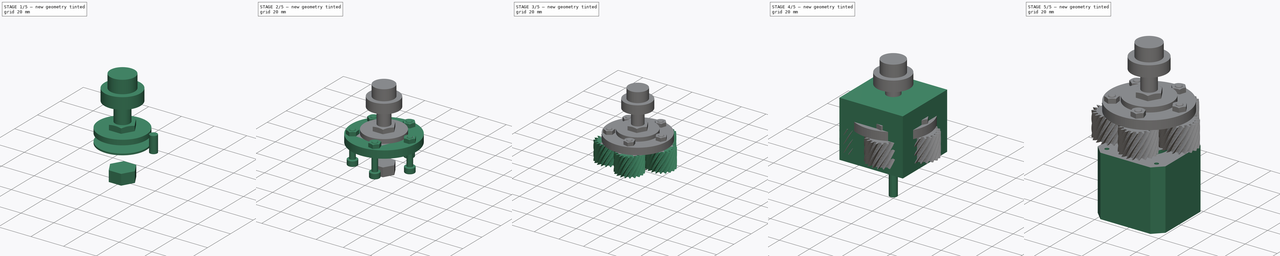
[diagram: build sequence overview — one tinted view per stage of 5, left to right]
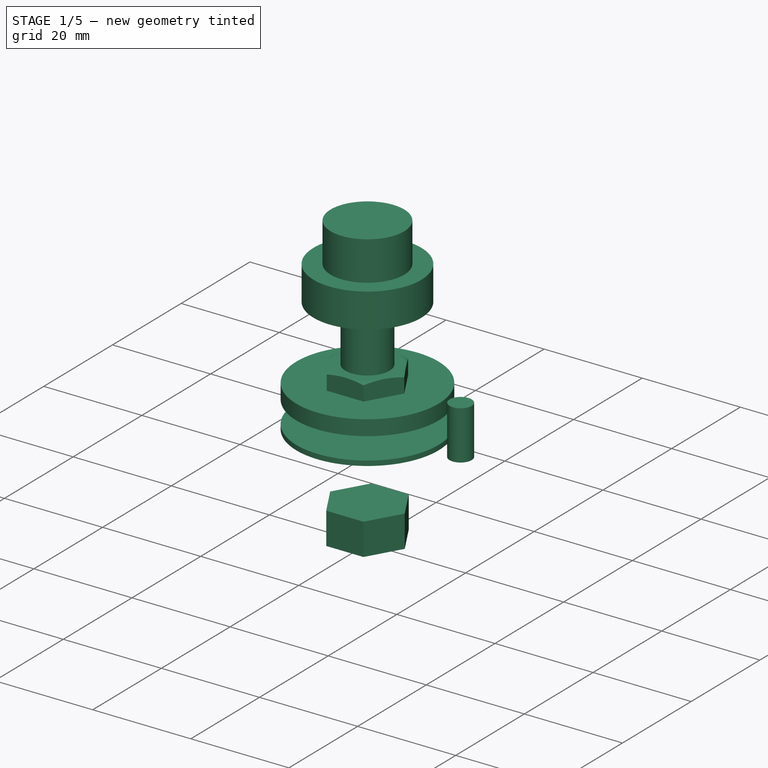
[diagram: stage 1 of 5 — iso view after this stage's code; geometry added in this stage tinted green]
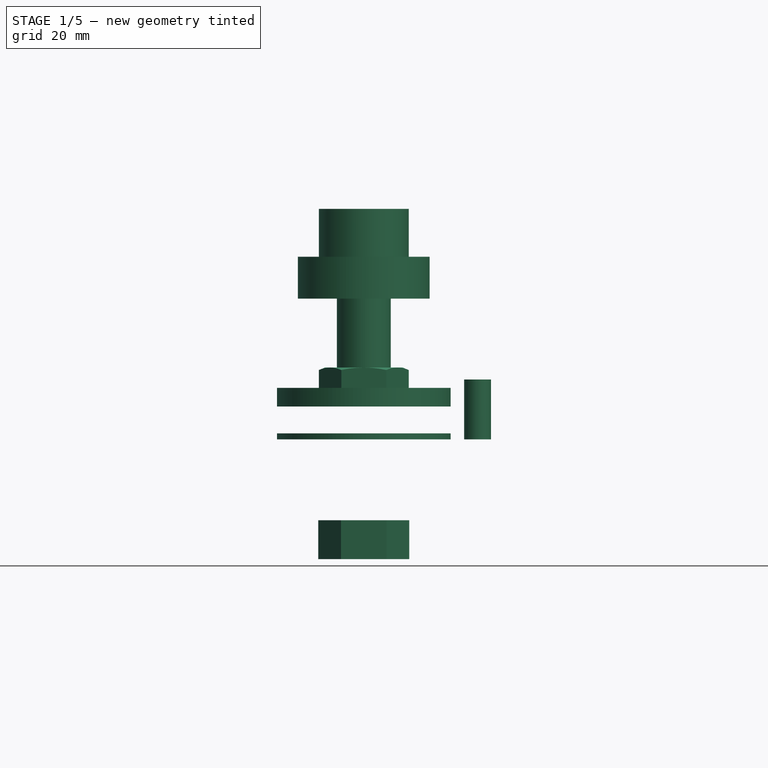
[diagram: stage 1 of 5 — front view after this stage's code; geometry added in this stage tinted green]
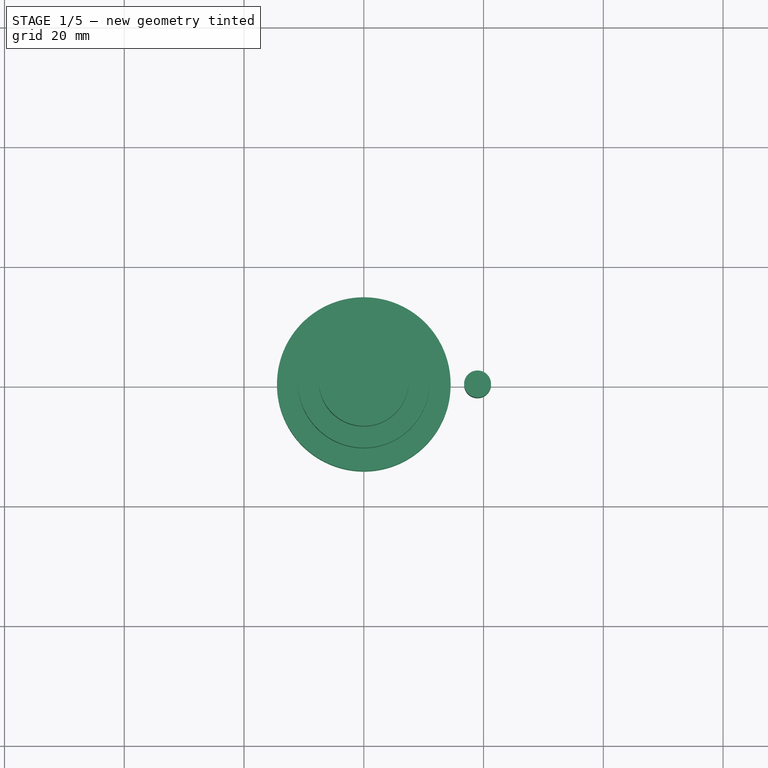
[diagram: stage 1 of 5 — top view after this stage's code; geometry added in this stage tinted green]
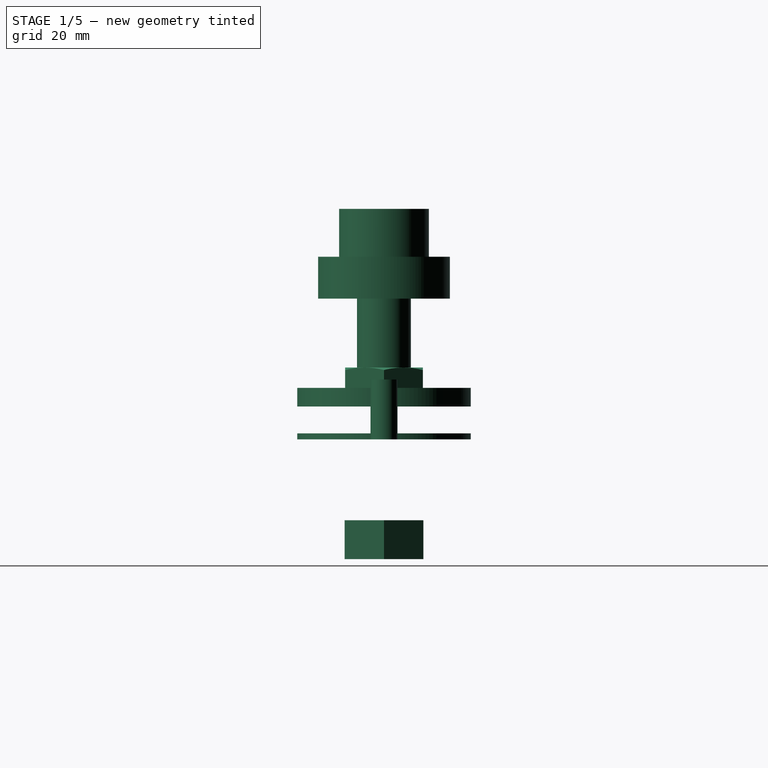
[diagram: stage 1 of 5 — right view after this stage's code; geometry added in this stage tinted green]
FCSTD DOCUMENT  (FreeCAD 1.0R1.0rc2)
Label: ArmGear
License: All rights reserved
LicenseURL: http://en.wikipedia.org/wiki/All_rights_reserved
objects: Part::Cylinder×16, Part::FeaturePython×10, Part::Compound×7, Part::Cut×7, Part::Box×6, Part::MultiFuse×5, Spreadsheet::Sheet×2, Sketcher::SketchObject×2, PartDesign::Pad×2, PartDesign::Body×2
note: 60 computed .brp shape members not serialized (recipe doc carries the construction recipe); baked Part::Feature solids carry a one-line shape summary decoded from their .brp

FEATURE [Sketcher::SketchObject] Sketch
  ArcFitTolerance = 1e-06
  AttachmentSupport = -> [XY_Plane]
  FullyConstrained = true
  MakeInternals = false
  MapMode = 5
  sketch-geometry (7):
    g0: LineSegment StartX=4 StartY=0 StartZ=0 EndX=2 EndY=3.4641 EndZ=0
    g1: LineSegment StartX=2 StartY=3.4641 StartZ=0 EndX=-2 EndY=3.4641 EndZ=0
    g2: LineSegment StartX=-2 StartY=3.4641 StartZ=0 EndX=-4 EndY=-6.867e-12 EndZ=0
    g3: LineSegment StartX=-4 StartY=-6.867e-12 StartZ=0 EndX=-2 EndY=-3.4641 EndZ=0
    g4: LineSegment StartX=-2 StartY=-3.4641 StartZ=0 EndX=2 EndY=-3.4641 EndZ=0
    g5: LineSegment StartX=2 StartY=-3.4641 StartZ=0 EndX=4 EndY=0 EndZ=0
    g6: Circle [constr] CenterX=0 CenterY=0 CenterZ=0 NormalX=0 NormalY=0 NormalZ=1 AngleXU=0 Radius=4
  constraints (16):
    c: Coincident(g0,g1)
    c: Coincident(g1,g2)
    c: Coincident(g2,g3)
    c: Coincident(g3,g4)
    c: Coincident(g4,g5)
    c: Coincident(g5,g0)
    c: Equal(g0, g1-g5) x5
    c: PointOnObject(g0,g6)
    c: PointOnObject(g1,g6)
    c: PointOnObject(g2,g6)
    c: PointOnObject(g3,g6)
    c: PointOnObject(g4,g6)
    c: PointOnObject(g5,g6)
    c: Radius(g6) = 4
    c: Coincident(g6,g-1)
    c: PointOnObject(g5,g-1)
FEATURE [PartDesign::Pad] Pad
  Direction = (0,0,1)
  Length = 3.5
  Length2 = 10
  Profile = -> Sketch
  ReferenceAxis = -> Sketch [N_Axis]
  Suppressed = false
  Type = 0
FEATURE [PartDesign::Body] Body  label="PressfitM4"
  AllowCompound = false
  Group = -> [Sketch,Pad]
  Origin = -> Origin
  Placement = pos=(19,0,22) rot=(0,0,1;0rad)
  Tip = -> Pad
  expr: .Placement.Base.x = <<GearConfiguration>>.planet_offset
  expr: .Placement.Base.z = 20 + <<GearConfiguration>>.planet_carrier_thickness
FEATURE [Part::Cylinder] Cylinder011
  Angle = 360
  AttacherType = Attacher::AttachEngine3D
  FirstAngle = 0
  Height = 10
  Placement = pos=(19,0,20) rot=(0,0,1;0rad)
  Radius = 2.25
  SecondAngle = 0
  expr: .Placement.Base.x = <<GearConfiguration>>.planet_offset
FEATURE [Part::Cylinder] Cylinder012
  Angle = 360
  AttacherType = Attacher::AttachEngine3D
  FirstAngle = 0
  Height = 1
  Placement = pos=(0,0,20) rot=(0,0,1;0rad)
  Radius = 14.5
  SecondAngle = 0
  expr: Height = <<GearConfiguration>>.planet_carrier_thickness / 2
  expr: Radius = <<GearConfiguration>>.gear_module * <<GearConfiguration>>.zs / 2 + 5
FEATURE [Part::Cylinder] Cylinder013
  Angle = 360
  AttacherType = Attacher::AttachEngine3D
  FirstAngle = 0
  Height = 3.1
  Placement = pos=(0,0,25.5) rot=(0,0,1;0rad)
  Radius = 14.5
  SecondAngle = 0
  expr: .Placement.Base.z = 20 + <<GearConfiguration>>.planet_carrier_thickness + 3.5
  expr: Radius = <<GearConfiguration>>.gear_module * <<GearConfiguration>>.zs / 2 + 5
FEATURE [Part::FeaturePython] Nut002  label="M8-Nut"  # WARN: FeaturePython — macro-defined, semantics opaque (R4)
  Diameter = 13
  Invert = false
  LeftHanded = false
  MatchOuter = false
  Placement = pos=(0,0,25.5) rot=(0,0,1;0rad)
  Thread = false
  Type = 19
  expr: .Placement.Base.z = 20 + <<GearConfiguration>>.planet_carrier_thickness + 3.5
FEATURE [Part::FeaturePython] Screw001  label="M8x25-Screw"  # WARN: FeaturePython — macro-defined, semantics opaque (R4)
  Diameter = 8
  Invert = false
  LeftHanded = false
  Length = 5
  LengthCustom = 25
  MatchOuter = false
  Placement = pos=(0,0,50.5) rot=(1,0,0;0rad)
  Thread = false
  Type = 74
  expr: .Placement.Base.z = 45 + <<GearConfiguration>>.planet_carrier_thickness + 3.5
FEATURE [Part::Cylinder] Cylinder014
  Angle = 360
  AttacherType = Attacher::AttachEngine3D
  FirstAngle = 0
  Height = 33
  Placement = pos=(0,0,25.5) rot=(0,0,1;0rad)
  Radius = 4.5
  SecondAngle = 0
  expr: .Placement.Base.z = 20 + 3.5 + <<GearConfiguration>>.planet_carrier_thickness
FEATURE [Part::Cylinder] Cylinder015
  Angle = 360
  AttacherType = Attacher::AttachEngine3D
  FirstAngle = 0
  Height = 8
  Placement = pos=(0,0,50.5) rot=(0,0,1;0rad)
  Radius = 7.5
  SecondAngle = 0
  expr: .Placement.Base.z = 20 + 3.5 + <<GearConfiguration>>.planet_carrier_thickness + 25
FEATURE [Part::MultiFuse] Fusion004  label="ScrewSpaceM8"
  Shapes = -> [Cylinder015,Cylinder014]
FEATURE [Part::Cylinder] Cylinder016  label="BallBearingSpace"
  Angle = 360
  AttacherType = Attacher::AttachEngine3D
  FirstAngle = 0
  Height = 7
  Placement = pos=(0,0,43.5) rot=(0,0,1;0rad)
  Radius = 11
  SecondAngle = 0
  expr: .Placement.Base.z = 20 + 3.5 + <<GearConfiguration>>.planet_carrier_thickness + 25 - 7
FEATURE [Sketcher::SketchObject] Sketch001
  ArcFitTolerance = 1e-06
  AttachmentSupport = -> [XY_Plane001]
  FullyConstrained = true
  MakeInternals = false
  MapMode = 5
  sketch-geometry (7):
    g0: LineSegment StartX=7.6 StartY=0 StartZ=0 EndX=3.8 EndY=6.58179 EndZ=0
    g1: LineSegment StartX=3.8 StartY=6.58179 StartZ=0 EndX=-3.8 EndY=6.58179 EndZ=0
    g2: LineSegment StartX=-3.8 StartY=6.58179 StartZ=0 EndX=-7.6 EndY=2.60671e-11 EndZ=0
    g3: LineSegment StartX=-7.6 StartY=2.60671e-11 StartZ=0 EndX=-3.8 EndY=-6.58179 EndZ=0
    g4: LineSegment StartX=-3.8 StartY=-6.58179 StartZ=0 EndX=3.8 EndY=-6.58179 EndZ=0
    g5: LineSegment StartX=3.8 StartY=-6.58179 StartZ=0 EndX=7.6 EndY=0 EndZ=0
    g6: Circle [constr] CenterX=0 CenterY=0 CenterZ=0 NormalX=0 NormalY=0 NormalZ=1 AngleXU=0 Radius=7.6
  constraints (16):
    c: Coincident(g0,g1)
    c: Coincident(g1,g2)
    c: Coincident(g2,g3)
    c: Coincident(g3,g4)
    c: Coincident(g4,g5)
    c: Coincident(g5,g0)
    c: Equal(g0, g1-g5) x5
    c: PointOnObject(g0,g6)
    c: PointOnObject(g1,g6)
    c: PointOnObject(g2,g6)
    c: PointOnObject(g3,g6)
    c: PointOnObject(g4,g6)
    c: PointOnObject(g5,g6)
    c: Radius(g6) = 7.6
    c: Coincident(g6,g-1)
    c: PointOnObject(g5,g-1)
FEATURE [PartDesign::Pad] Pad001
  Direction = (0,0,1)
  Length = 6.5
  Length2 = 10
  Profile = -> Sketch001
  ReferenceAxis = -> Sketch001 [N_Axis]
  Suppressed = false
  Type = 0
FEATURE [PartDesign::Body] Body001  label="PressfitM8"
  AllowCompound = false
  Group = -> [Sketch001,Pad001]
  Origin = -> Origin001
  Placement = pos=(0,0,1) rot=(0,0,1;0rad)
  Tip = -> Pad001
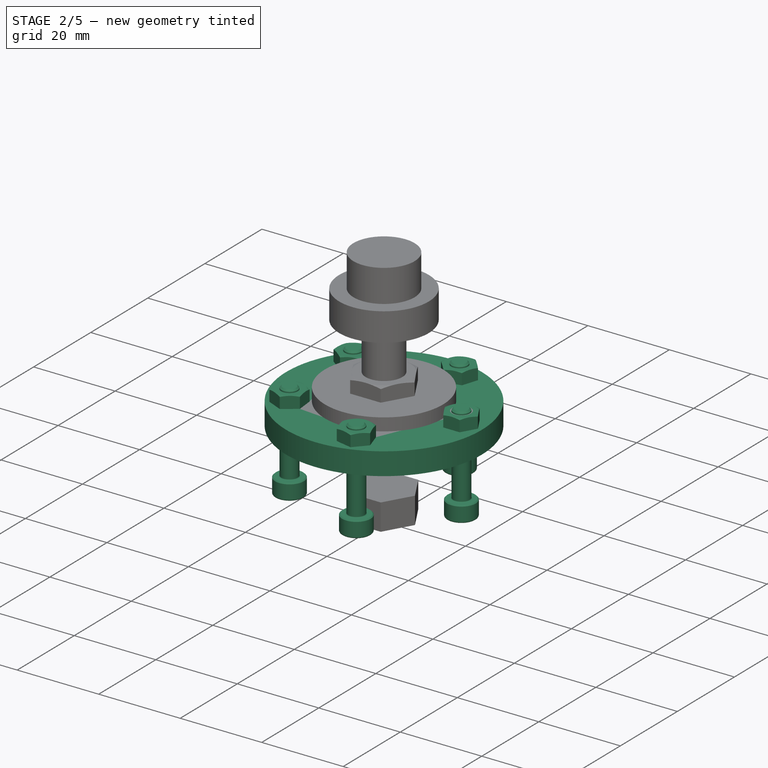
[diagram: stage 2 of 5 — iso view after this stage's code; geometry added in this stage tinted green]
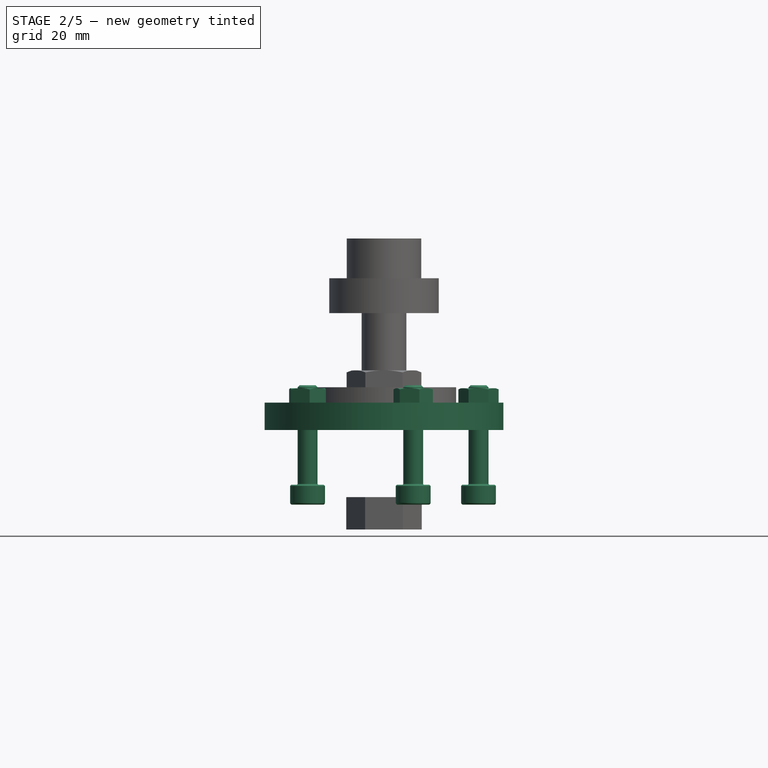
[diagram: stage 2 of 5 — front view after this stage's code; geometry added in this stage tinted green]
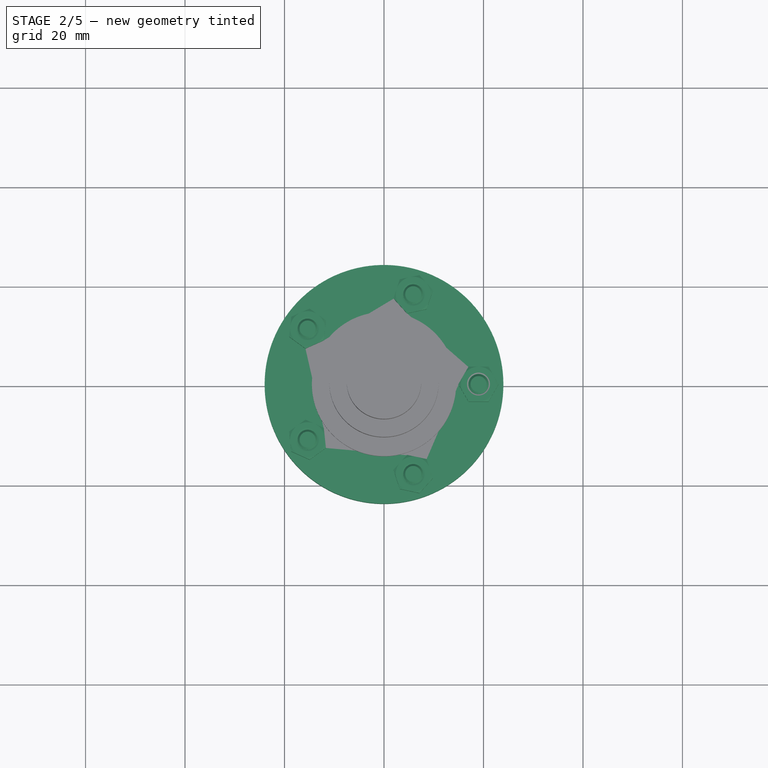
[diagram: stage 2 of 5 — top view after this stage's code; geometry added in this stage tinted green]
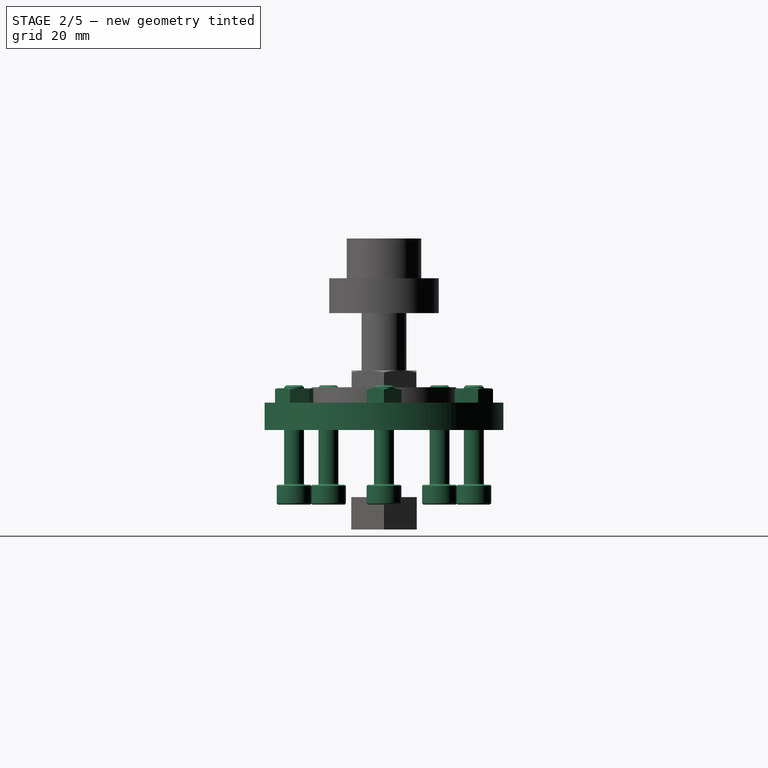
[diagram: stage 2 of 5 — right view after this stage's code; geometry added in this stage tinted green]
FEATURE [Part::FeaturePython] Screw  label="M4x20-Screw"  # WARN: FeaturePython — macro-defined, semantics opaque (R4)
  Diameter = 5
  Invert = false
  LeftHanded = false
  Length = 6
  LengthCustom = 20
  MatchOuter = false
  Placement = pos=(19,0,9) rot=(1,0,0;3.14159rad)
  Thread = false
  Type = 74
  expr: .Placement.Base.x = <<GearConfiguration>>.planet_offset
FEATURE [Part::FeaturePython] Nut  label="M4-Nut001"  # WARN: FeaturePython — macro-defined, semantics opaque (R4)
  Diameter = 9
  Invert = false
  LeftHanded = false
  MatchOuter = false
  Placement = pos=(19,0,22) rot=(0,0,1;0rad)
  Thread = false
  Type = 19
  expr: .Placement.Base.x = <<GearConfiguration>>.planet_offset
  expr: .Placement.Base.z = 20 + <<GearConfiguration>>.planet_carrier_thickness
FEATURE [Part::FeaturePython] Nut001  label="M4-Nut"  # WARN: FeaturePython — macro-defined, semantics opaque (R4)
  Diameter = 9
  Invert = false
  LeftHanded = false
  MatchOuter = false
  Placement = pos=(19,0,25.2) rot=(0,0,1;0rad)
  Thread = false
  Type = 19
  expr: .Placement.Base.x = <<GearConfiguration>>.planet_offset
  expr: .Placement.Base.z = 20 + <<GearConfiguration>>.planet_carrier_thickness + 3.2
FEATURE [Part::Compound] Compound006
  Links = -> [Nut001,Screw,Nut]
FEATURE [Part::FeaturePython] Array001  label="MODELPlanetGearScrews"  # Draft array (typed FeaturePython)
  AlwaysSyncPlacement = false
  Angle = 360
  ArrayType = 1
  Axis = (0,0,1)
  Base = -> Compound006
  Center = (0,0,0)
  Count = 5
  ExpandArray = false
  Fuse = false
  IntervalAxis = (0,0,0)
  IntervalX = (50,0,0)
  IntervalY = (0,50,0)
  IntervalZ = (0,0,50)
  NumberCircles = 3
  NumberPolar = 5
  NumberX = 2
  NumberY = 2
  NumberZ = 1
  PlacementList = 5 placements: [(0,0,0),(0,0,0),(0,0,0),(0,0,0),(0,0,0)]
  RadialDistance = 50
  ScaleList = (5) [(1,1,1),(1,1,1),(1,1,1),(1,1,1),(1,1,1)]
  Symmetry = 1
  TangentialDistance = 25
  expr: NumberPolar = <<GearConfiguration>>.num_planets
FEATURE [Part::Cylinder] Cylinder010
  Angle = 360
  AttacherType = Attacher::AttachEngine3D
  FirstAngle = 0
  Height = 5.5
  Placement = pos=(0,0,20) rot=(0,0,1;0rad)
  Radius = 24
  SecondAngle = 0
  expr: Height = <<GearConfiguration>>.planet_carrier_thickness + 3.5
  expr: Radius = <<GearConfiguration>>.planet_offset + 5
FEATURE [Part::MultiFuse] Fusion003
  Shapes = -> [Cylinder011,Body]
FEATURE [Part::FeaturePython] Array002  # Draft array (typed FeaturePython)
  AlwaysSyncPlacement = false
  Angle = 360
  ArrayType = 1
  Axis = (0,0,1)
  Base = -> Fusion003
  Center = (0,0,0)
  Count = 5
  ExpandArray = false
  Fuse = false
  IntervalAxis = (0,0,0)
  IntervalX = (50,0,0)
  IntervalY = (0,50,0)
  IntervalZ = (0,0,50)
  NumberCircles = 3
  NumberPolar = 5
  NumberX = 2
  NumberY = 2
  NumberZ = 1
  PlacementList = 5 placements: [(0,0,0),(0,0,0),(0,0,0),(0,0,0),(0,0,0)]
  RadialDistance = 50
  ScaleList = (5) [(1,1,1),(1,1,1),(1,1,1),(1,1,1),(1,1,1)]
  Symmetry = 1
  TangentialDistance = 25
  expr: NumberPolar = <<GearConfiguration>>.num_planets
FEATURE [Part::Cut] Cut005
  Base = -> Cylinder010
  Tool = -> Array002
FEATURE [Part::Cut] Cut006
  Base = -> Cut005
  Tool = -> Cylinder012
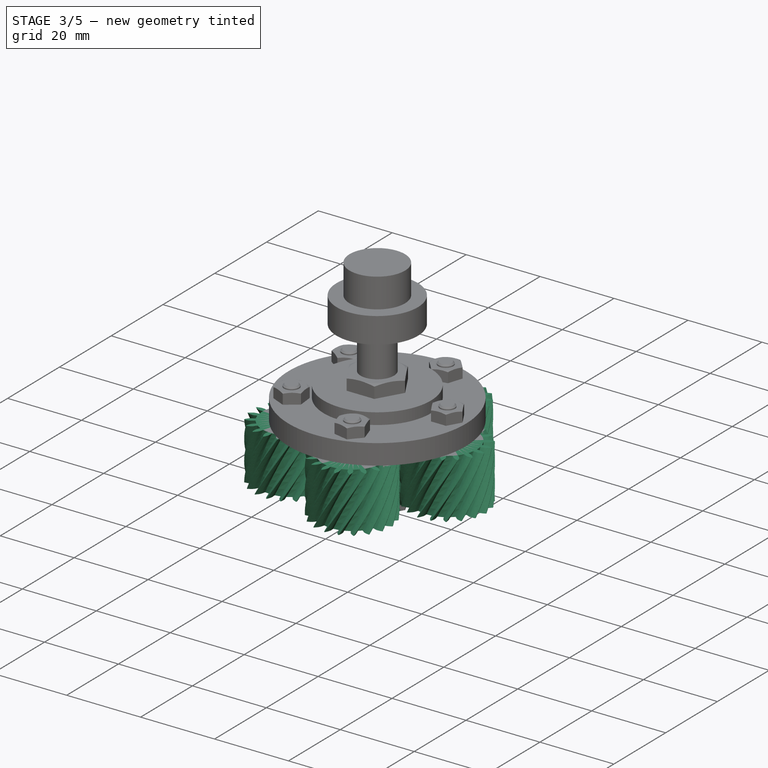
[diagram: stage 3 of 5 — iso view after this stage's code; geometry added in this stage tinted green]
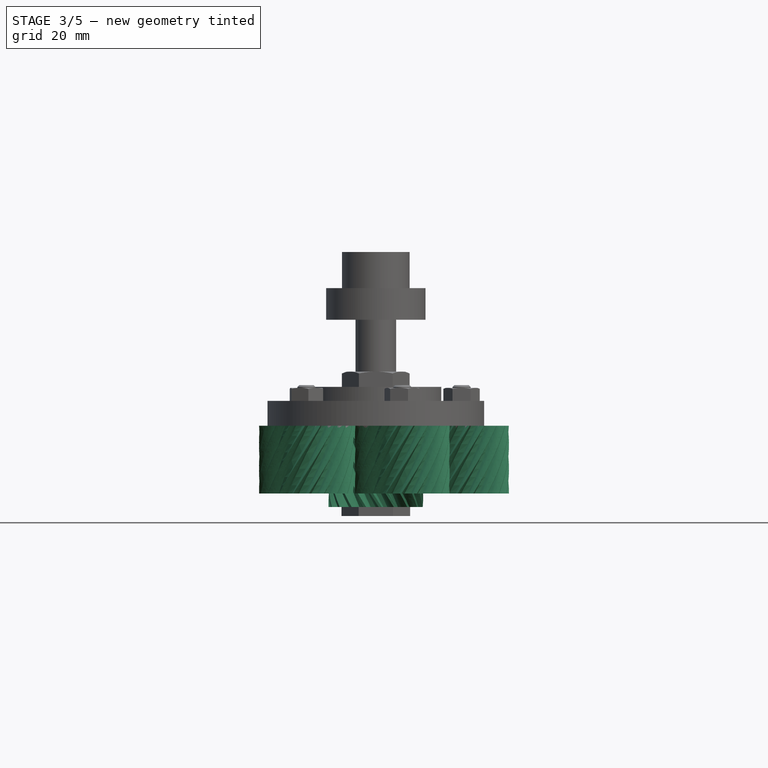
[diagram: stage 3 of 5 — front view after this stage's code; geometry added in this stage tinted green]
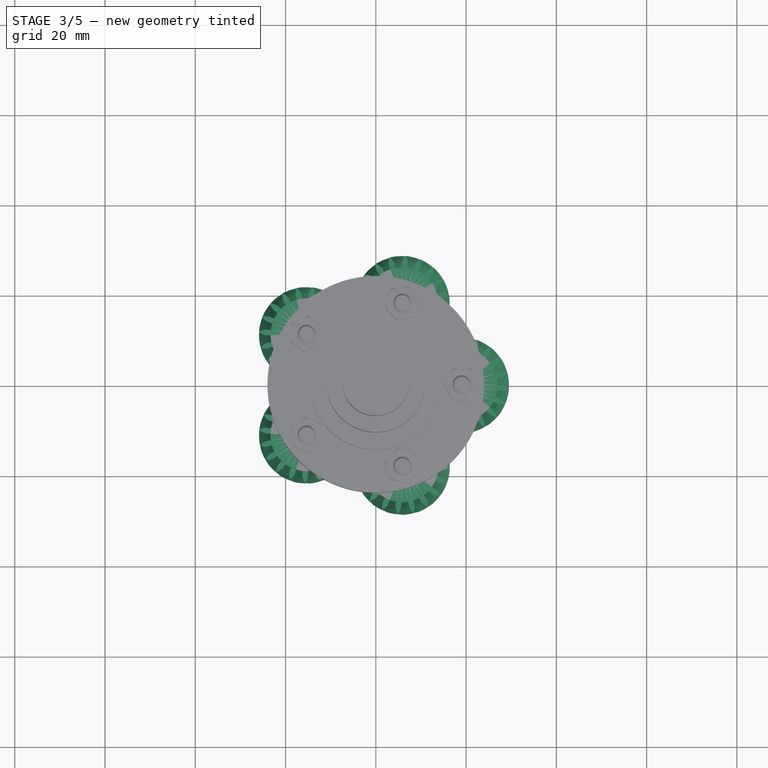
[diagram: stage 3 of 5 — top view after this stage's code; geometry added in this stage tinted green]
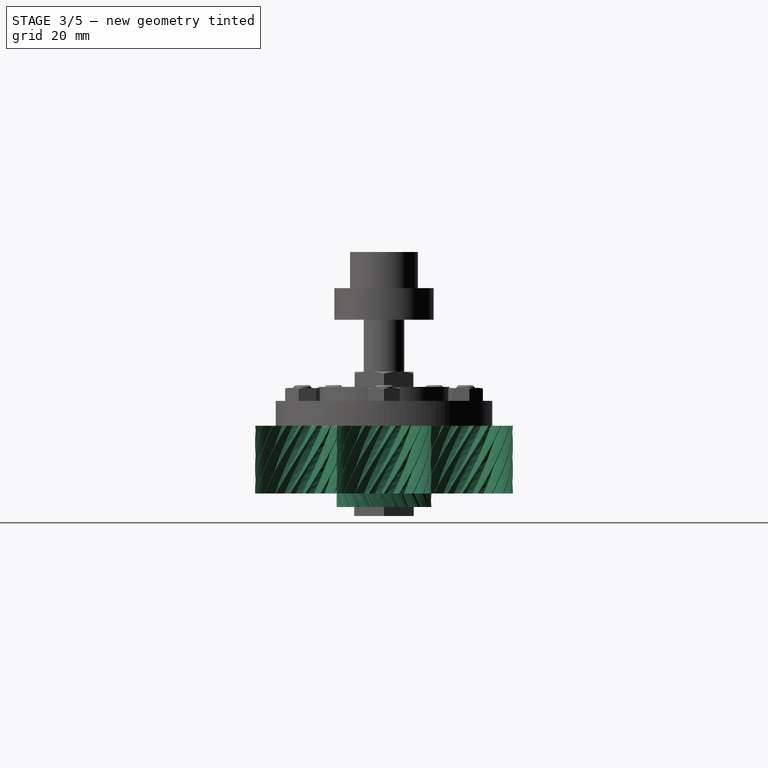
[diagram: stage 3 of 5 — right view after this stage's code; geometry added in this stage tinted green]
FEATURE [Spreadsheet::Sheet] Spreadsheet  label="NEMA17Parameters"
  cells = A1='Motor length; B1(motorlength)=37.5; A2='Mountplate thickness; B2(mountplatet)=5; A3='Mountplate below screw; B3(nema17mountplatebelowscrew)=1
FEATURE [Spreadsheet::Sheet] Spreadsheet001  label="GearConfiguration"
  cells = A1='Configuration properties; D1='Calculated properties; A2='Sun gear teeth; B2(zs)=19; D2='Planet gear teeth; E2(zp)==(zr - zs) / 2; A3='Ring gear teeth; B3(zr)=57; D3='Planetary gear offset; E3(planet_offset)==gear_module * (zp + zs) / 2; A4='Module; B4(gear_module)=1; D4='Ring Gear Diameter; E4(ringgear_diameter)==gear_module * zr; A5='Ring Gear thickness; B5(ringgear_thick)=5; D5='Transmission ratio; E5==1 + zr / zs; A6='Clearance; B6(gear_clearance)=0.5; C6='Default 0.25; D6='Sun gear diameter; E6(sun_gear_diameter)==gear_module * zs; A7='Number of planets; B7(num_planets)=5; A8='Planet 'Carrier Thickness; B8(planet_carrier_thickness)=2
FEATURE [Part::Box] Box005  label="Cube005"
  AttacherType = Attacher::AttachEngine3D
  Height = 20
  Length = 10
  Placement = pos=(-5,2.1,1.8) rot=(0,0,1;0rad)
  Width = 10
FEATURE [Part::Cylinder] Cylinder006
  Angle = 360
  AttacherType = Attacher::AttachEngine3D
  FirstAngle = 0
  Height = 20
  Radius = 2.7
  SecondAngle = 0
FEATURE [Part::Cut] Cut002
  Base = -> Cylinder006
  Tool = -> Box005
FEATURE [Part::FeaturePython] InvoluteGear  # WARN: FeaturePython — macro-defined, semantics opaque (R4)
  AttacherType = Attacher::AttachEngine3D
  angular_backlash = 0
  backlash = 0
  beta = -30
  clearance = 0.5
  da = 21
  df = 16
  double_helix = false
  dw = 19
  head = 0
  head_fillet = 0
  height = 18
  module = 1
  numpoints = 20
  pressure_angle = 20
  properties_from_tool = false
  reversed_backlash = false
  root_fillet = 0
  shift = 0
  simple = false
  teeth = 19
  transverse_pitch = 3.14159
  traverse_module = 1
  undercut = false
  version = 1.2.0
  expr: angular_backlash = backlash / dw * 360 ° / pi
  expr: clearance = <<GearConfiguration>>.gear_clearance
  expr: module = <<GearConfiguration>>.gear_module
  expr: teeth = <<GearConfiguration>>.zs
FEATURE [Part::Cut] Cut003  label="SunGear1"
  Base = -> InvoluteGear
  Placement = pos=(0,0,2) rot=(0,0,1;0.174533rad)
  Tool = -> Cut002
FEATURE [Part::Cylinder] Cylinder008
  Angle = 360
  AttacherType = Attacher::AttachEngine3D
  FirstAngle = 0
  Height = 40
  Radius = 2.25
  SecondAngle = 0
FEATURE [Part::Cylinder] Cylinder009
  Angle = 360
  AttacherType = Attacher::AttachEngine3D
  FirstAngle = 0
  Height = 4
  Placement = pos=(0,0,5) rot=(0,0,1;0rad)
  Radius = 3.75
  SecondAngle = 0
FEATURE [Part::MultiFuse] Fusion002
  Placement = pos=(19,0,0) rot=(0,0,1;0rad)
  Shapes = -> [Cylinder009,Cylinder008]
  expr: .Placement.Base.x = <<GearConfiguration>>.planet_offset
FEATURE [Part::FeaturePython] InvoluteGear001  # WARN: FeaturePython — macro-defined, semantics opaque (R4)
  AttacherType = Attacher::AttachEngine3D
  Placement = pos=(19,0,5) rot=(0,0,1;0rad)
  angular_backlash = 3.01557
  backlash = 0.5
  beta = 30
  clearance = 0.5
  da = 21
  df = 16
  double_helix = false
  dw = 19
  head = 0
  head_fillet = 0
  height = 15
  module = 1
  numpoints = 20
  pressure_angle = 20
  properties_from_tool = false
  reversed_backlash = false
  root_fillet = 0
  shift = 0
  simple = false
  teeth = 19
  transverse_pitch = 3.14159
  traverse_module = 1
  undercut = false
  version = 1.2.0
  expr: .Placement.Base.x = <<GearConfiguration>>.planet_offset
  expr: angular_backlash = backlash / dw * 360 ° / pi
  expr: clearance = <<GearConfiguration>>.gear_clearance
  expr: module = <<GearConfiguration>>.gear_module
  expr: teeth = <<GearConfiguration>>.zp
FEATURE [Part::Cut] Cut004  label="PlanetGear"
  Base = -> InvoluteGear001
  Tool = -> Fusion002
FEATURE [Part::FeaturePython] Array  label="ArrayPlanetGears"  # Draft array (typed FeaturePython)
  AlwaysSyncPlacement = false
  Angle = 360
  ArrayType = 1
  Axis = (0,0,1)
  Base = -> Cut004
  Center = (0,0,0)
  Count = 5
  ExpandArray = false
  Fuse = false
  IntervalAxis = (0,0,0)
  IntervalX = (50,0,0)
  IntervalY = (0,50,0)
  IntervalZ = (0,0,50)
  NumberCircles = 3
  NumberPolar = 5
  NumberX = 2
  NumberY = 2
  NumberZ = 1
  PlacementList = 5 placements: [(0,0,0),(0,0,0),(0,0,0),(0,0,0),(0,0,0)]
  RadialDistance = 50
  ScaleList = (5) [(1,1,1),(1,1,1),(1,1,1),(1,1,1),(1,1,1)]
  Symmetry = 1
  TangentialDistance = 25
  expr: NumberPolar = <<GearConfiguration>>.num_planets
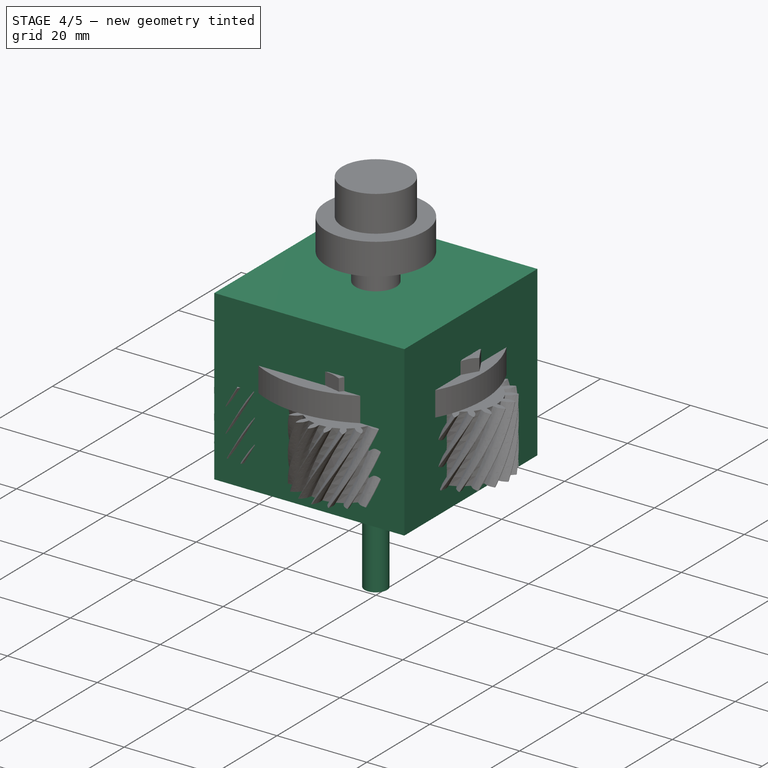
[diagram: stage 4 of 5 — iso view after this stage's code; geometry added in this stage tinted green]
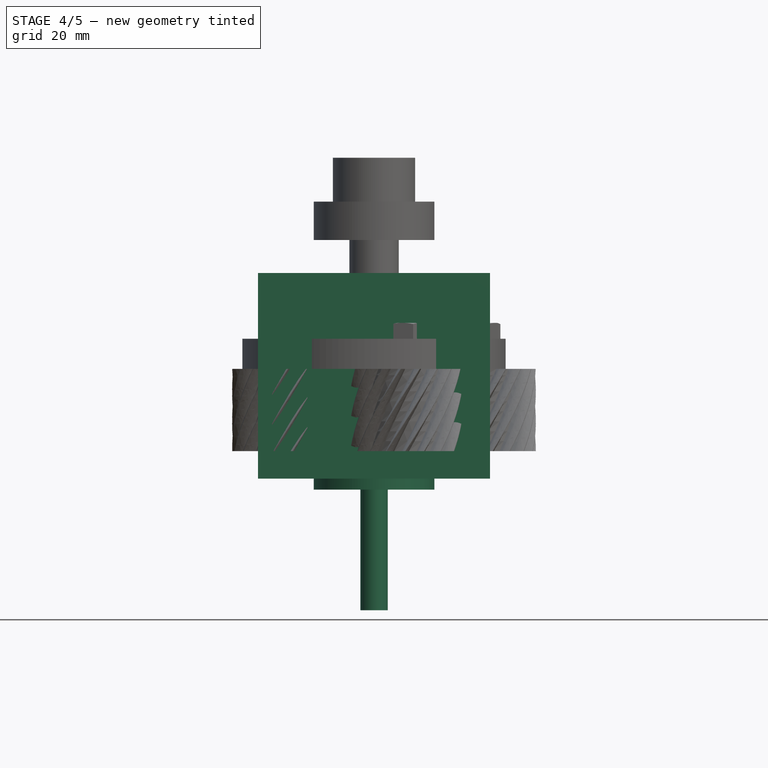
[diagram: stage 4 of 5 — front view after this stage's code; geometry added in this stage tinted green]
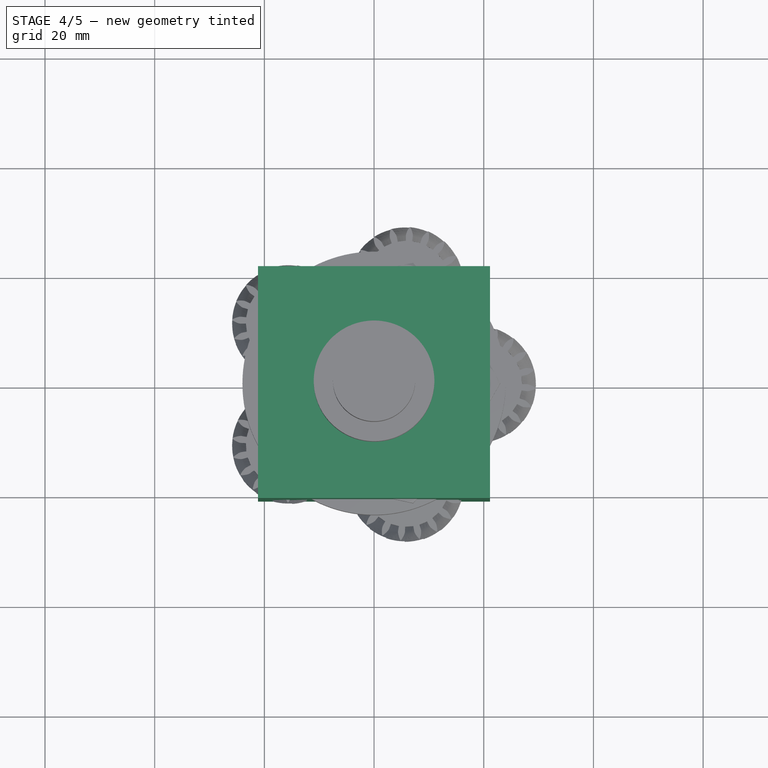
[diagram: stage 4 of 5 — top view after this stage's code; geometry added in this stage tinted green]
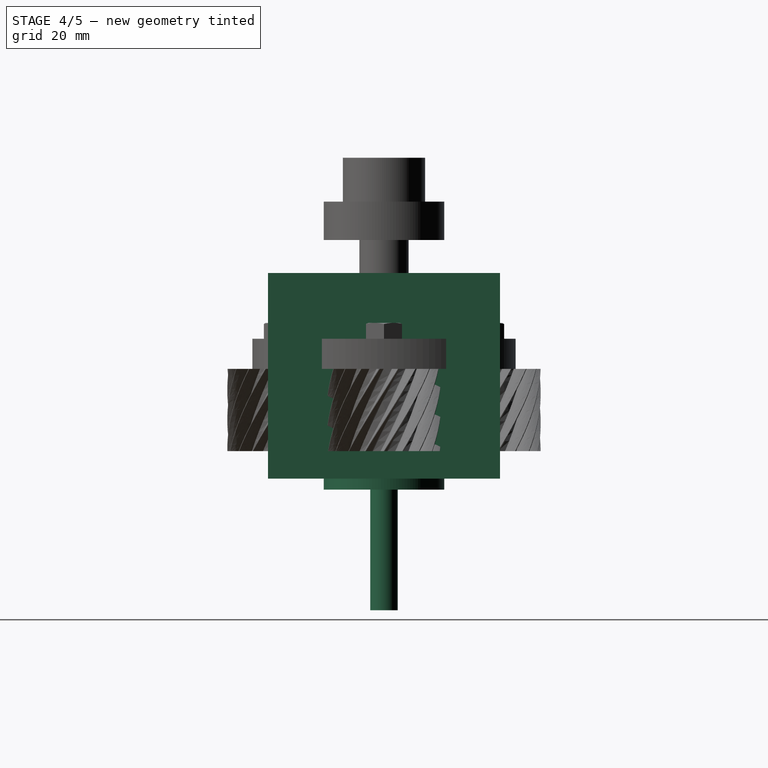
[diagram: stage 4 of 5 — right view after this stage's code; geometry added in this stage tinted green]
FEATURE [Part::Box] Box  label="Cube"
  AttacherType = Attacher::AttachEngine3D
  Height = 37.5
  Length = 42.3
  Placement = pos=(-21.15,-21.15,0) rot=(0,0,1;0rad)
  Width = 42.3
  expr: Height = <<NEMA17Parameters>>.motorlength
FEATURE [Part::Cylinder] Cylinder
  Angle = 360
  AttacherType = Attacher::AttachEngine3D
  FirstAngle = 0
  Height = 2
  Placement = pos=(0,0,-2) rot=(0,0,1;0rad)
  Radius = 11
  SecondAngle = 0
FEATURE [Part::Cylinder] Cylinder001
  Angle = 360
  AttacherType = Attacher::AttachEngine3D
  FirstAngle = 0
  Height = 24
  Placement = pos=(0,0,-24) rot=(0,0,1;0rad)
  Radius = 2.5
  SecondAngle = 0
FEATURE [Part::Cylinder] Cylinder002
  Angle = 360
  AttacherType = Attacher::AttachEngine3D
  FirstAngle = 0
  Height = 37.5
  Placement = pos=(15.5,15.5,0) rot=(0,0,1;0rad)
  Radius = 1.25
  SecondAngle = 0
  expr: Height = <<NEMA17Parameters>>.motorlength
FEATURE [Part::Cylinder] Cylinder003
  Angle = 360
  AttacherType = Attacher::AttachEngine3D
  FirstAngle = 0
  Height = 37.5
  Placement = pos=(-15.5,15.5,0) rot=(0,0,1;0rad)
  Radius = 1.25
  SecondAngle = 0
  expr: Height = <<NEMA17Parameters>>.motorlength
FEATURE [Part::Cylinder] Cylinder004
  Angle = 360
  AttacherType = Attacher::AttachEngine3D
  FirstAngle = 0
  Height = 37.5
  Placement = pos=(15.5,-15.5,0) rot=(0,0,1;0rad)
  Radius = 1.25
  SecondAngle = 0
  expr: Height = <<NEMA17Parameters>>.motorlength
FEATURE [Part::Cylinder] Cylinder005
  Angle = 360
  AttacherType = Attacher::AttachEngine3D
  FirstAngle = 0
  Height = 37.5
  Placement = pos=(-15.5,-15.5,0) rot=(0,0,1;0rad)
  Radius = 1.25
  SecondAngle = 0
  expr: Height = <<NEMA17Parameters>>.motorlength
FEATURE [Part::Compound] Compound
  Links = -> [Cylinder005,Cylinder002,Cylinder003,Cylinder004]
FEATURE [Part::MultiFuse] Fusion
  Shapes = -> [Cylinder,Box]
FEATURE [Part::MultiFuse] Fusion001
  Shapes = -> [Cylinder001,Fusion]
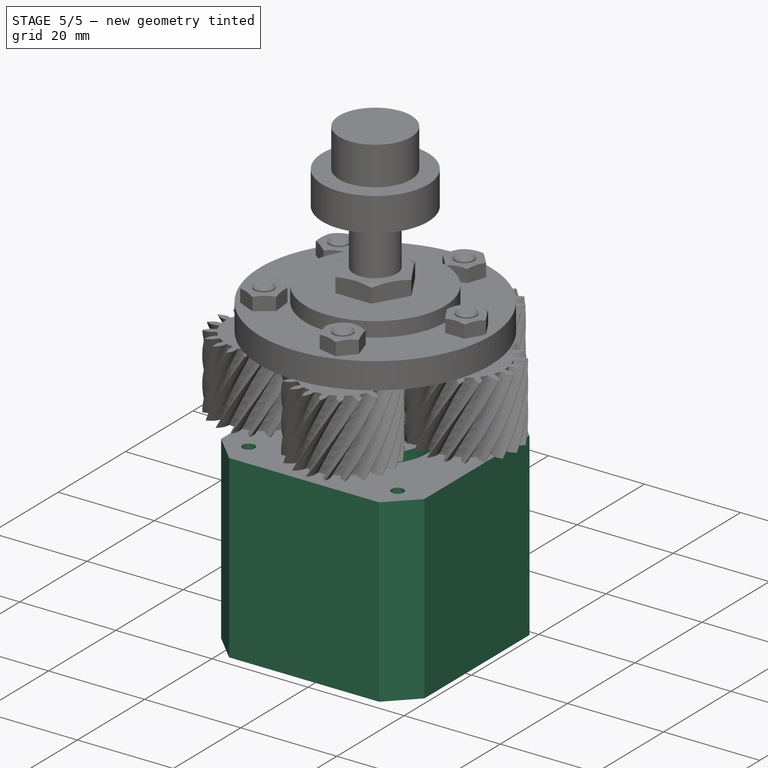
[diagram: stage 5 of 5 — iso view after this stage's code; geometry added in this stage tinted green]
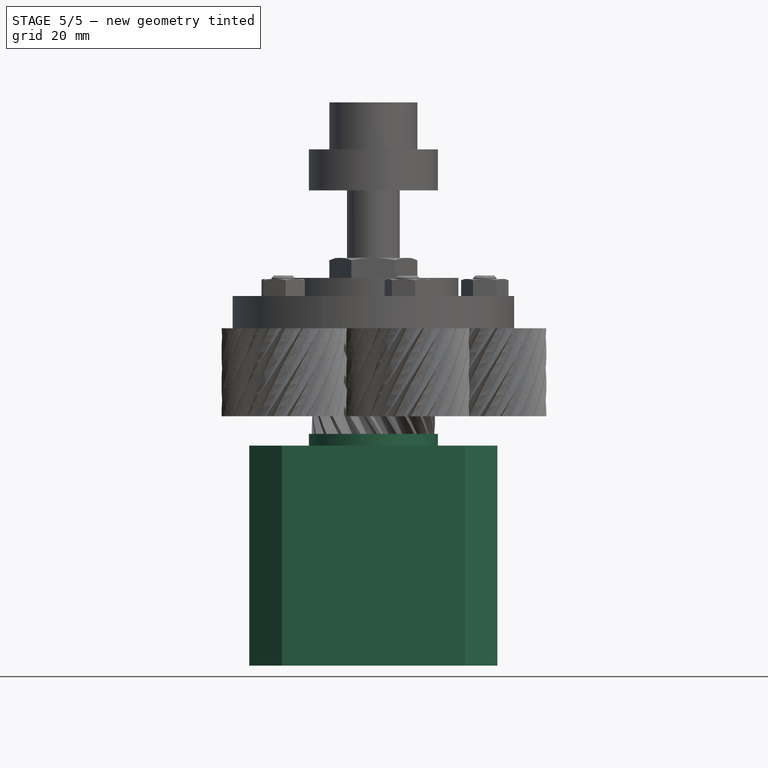
[diagram: stage 5 of 5 — front view after this stage's code; geometry added in this stage tinted green]
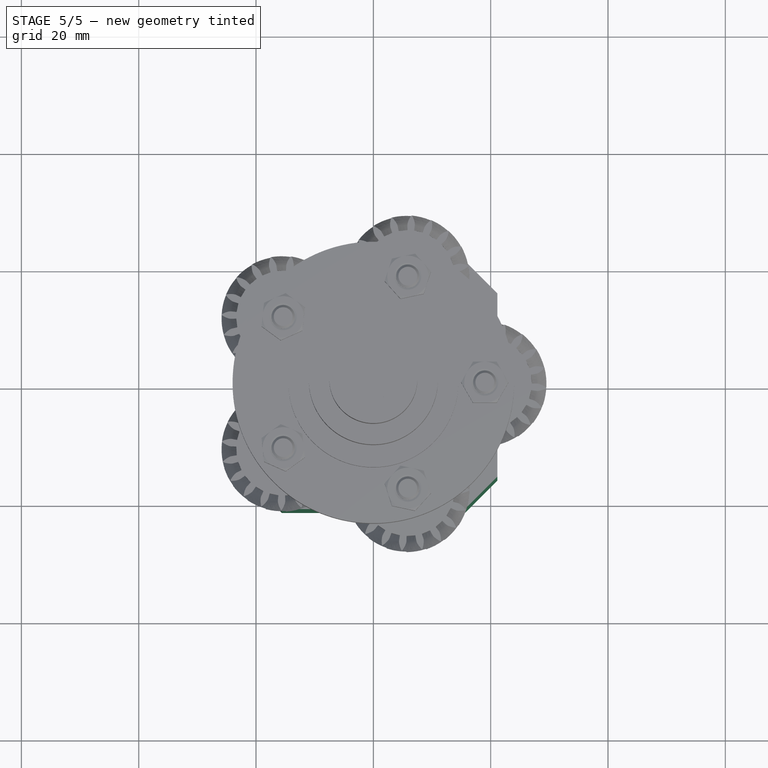
[diagram: stage 5 of 5 — top view after this stage's code; geometry added in this stage tinted green]
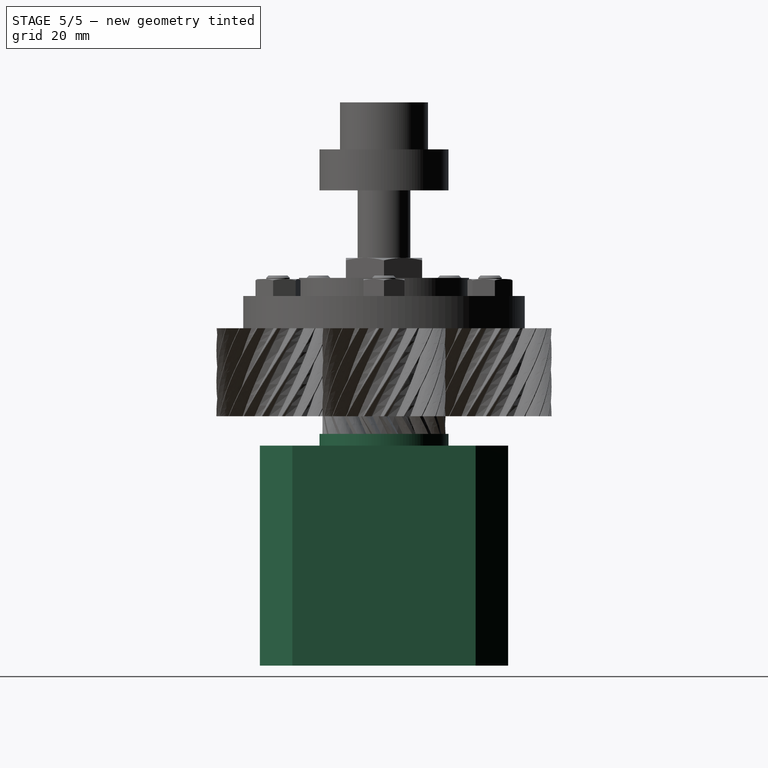
[diagram: stage 5 of 5 — right view after this stage's code; geometry added in this stage tinted green]
FEATURE [Part::Box] Box001  label="Cube001"
  AttacherType = Attacher::AttachEngine3D
  Height = 37.5
  Length = 100
  Placement = pos=(26,-50,0) rot=(0,0,1;0rad)
  Width = 100
  expr: Height = <<NEMA17Parameters>>.motorlength
FEATURE [Part::Box] Box002  label="Cube002"
  AttacherType = Attacher::AttachEngine3D
  Height = 37.5
  Length = 100
  Placement = pos=(26,-50,0) rot=(0,0,1;0rad)
  Width = 100
  expr: Height = <<NEMA17Parameters>>.motorlength
FEATURE [Part::Box] Box003  label="Cube003"
  AttacherType = Attacher::AttachEngine3D
  Height = 37.5
  Length = 100
  Placement = pos=(26,-50,0) rot=(0,0,1;0rad)
  Width = 100
  expr: Height = <<NEMA17Parameters>>.motorlength
FEATURE [Part::Box] Box004  label="Cube004"
  AttacherType = Attacher::AttachEngine3D
  Height = 37.5
  Length = 100
  Placement = pos=(26,-50,0) rot=(0,0,1;0rad)
  Width = 100
  expr: Height = <<NEMA17Parameters>>.motorlength
FEATURE [Part::Compound] Compound001
  Links = -> [Box001]
  Placement = pos=(0,0,0) rot=(0,0,1;0.785398rad)
FEATURE [Part::Compound] Compound002
  Links = -> [Box002]
  Placement = pos=(0,0,0) rot=(0,0,1;2.35619rad)
FEATURE [Part::Compound] Compound003
  Links = -> [Box003]
  Placement = pos=(0,0,0) rot=(0,0,1;3.92699rad)
FEATURE [Part::Compound] Compound004
  Links = -> [Box004]
  Placement = pos=(0,0,0) rot=(0,0,1;5.49779rad)
FEATURE [Part::Compound] Compound005
  Links = -> [Compound001,Compound002,Compound003,Compound004]
FEATURE [Part::Cut] Cut
  Base = -> Fusion001
  Tool = -> Compound
FEATURE [Part::Cut] Cut001  label="NEMA17Stepper"
  Base = -> Cut
  Placement = pos=(0,0,0) rot=(1,0,0;3.14159rad)
  Tool = -> Compound005
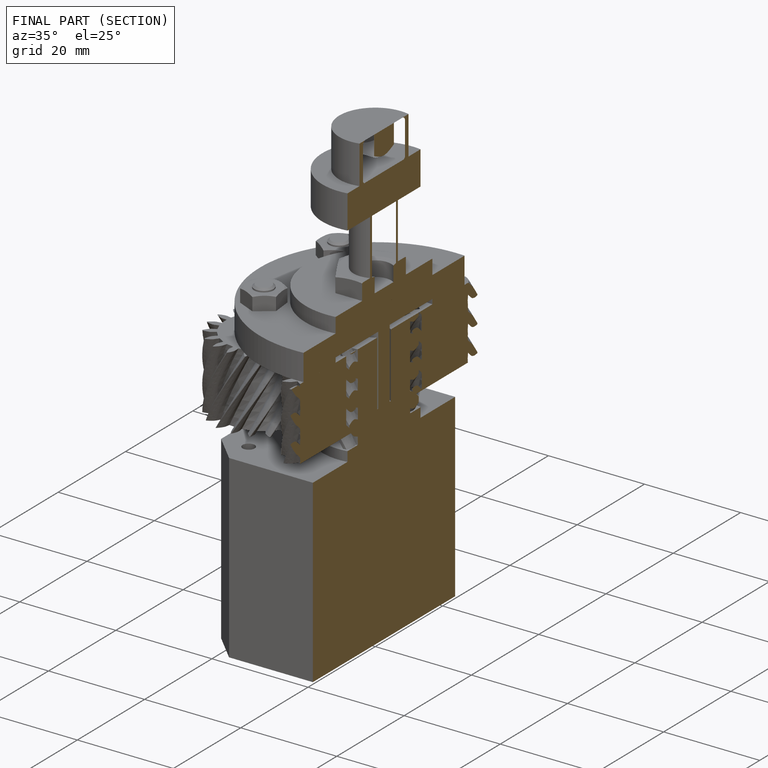
[diagram: finished part — half-section view (interior)]
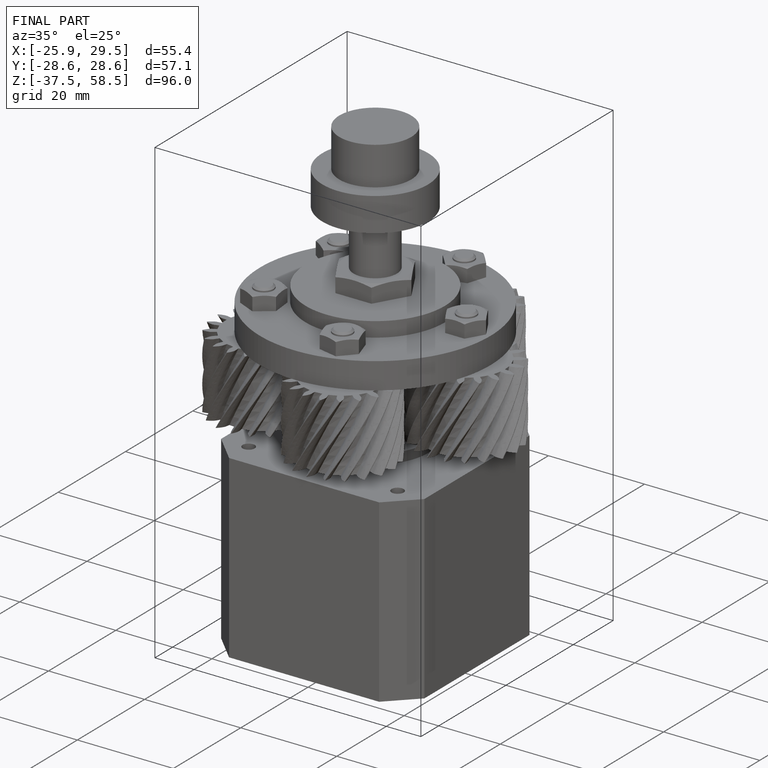
[diagram: finished part — iso view with bounding-box wireframe]
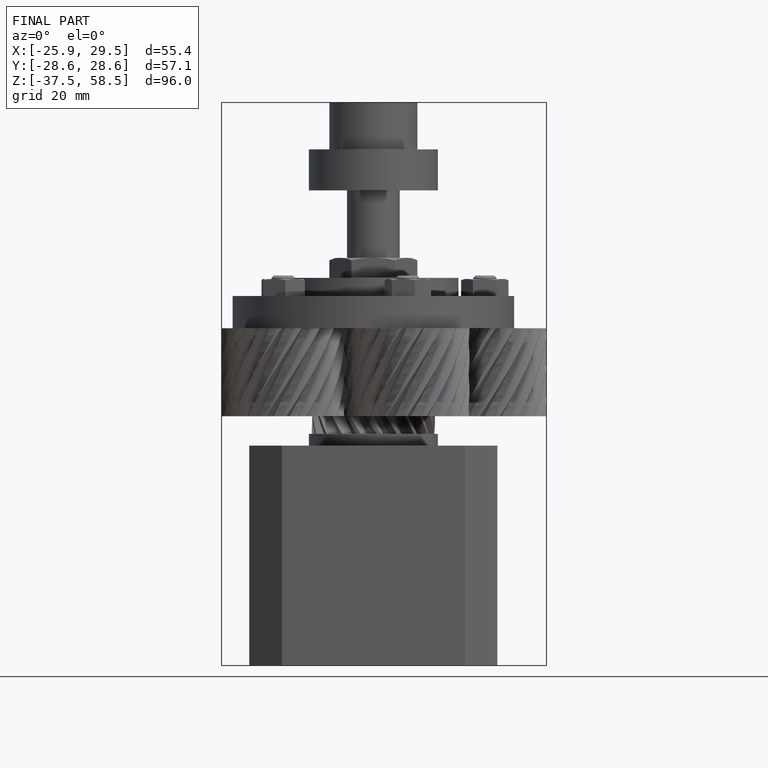
[diagram: finished part — front view with bounding-box wireframe]
